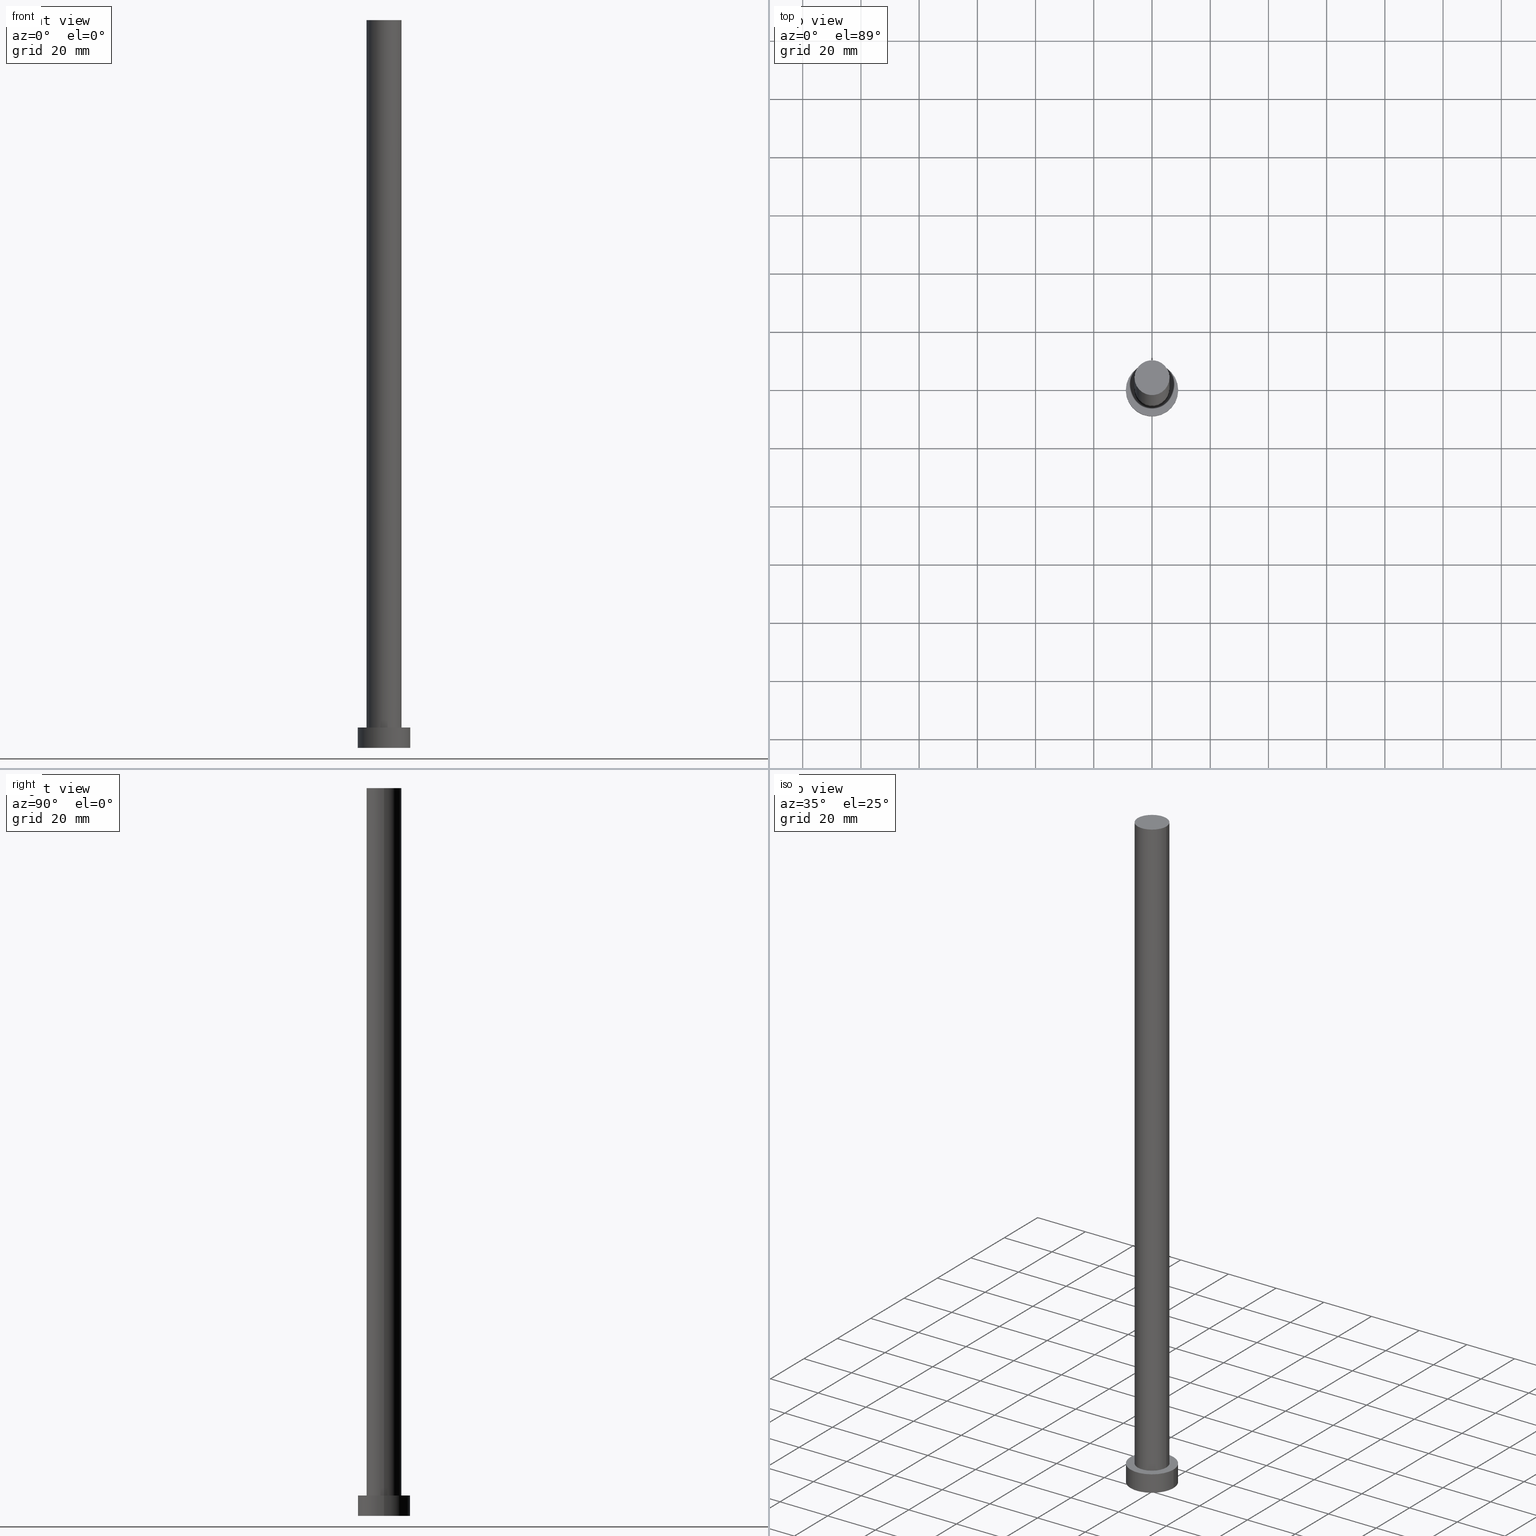
[diagram: canonical four-view strip — front | top / right | iso, engineering-drawing reading convention]
A machine part, canonical four-view strip (front | top / right | iso — engineering-drawing reading convention). The complete STEP part file that produces these views, byte-faithful:
ISO-10303-21;
HEADER;
FILE_DESCRIPTION (( 'STEP AP203' ),
    '1' );
FILE_NAME ('e915.STEP',
    '2023-02-13T09:18:08',
    ( '' ),
    ( '' ),
    'SwSTEP 2.0',
    'SolidWorks 2019',
    '' );
FILE_SCHEMA (( 'CONFIG_CONTROL_DESIGN' ));
ENDSEC;

DATA;
#1 = PRODUCT_DEFINITION_SHAPE ( 'NONE', 'NONE',  #213 ) ;
#2 = VECTOR ( 'NONE', #47, 1000.000000000000000 ) ;
#3 = VERTEX_POINT ( 'NONE', #108 ) ;
#4 = APPROVAL ( #149, 'NEUR�EN�' ) ;
#5 = CC_DESIGN_APPROVAL ( #60, ( #45 ) ) ;
#6 = MECHANICAL_CONTEXT ( 'NONE', #125, 'mechanical' ) ;
#7 = CARTESIAN_POINT ( 'NONE',  ( 0.000000000000000000, 0.000000000000000000, 250.0000000000000000 ) ) ;
#8 = CC_DESIGN_PERSON_AND_ORGANIZATION_ASSIGNMENT ( #206, #30, ( #176 ) ) ;
#9 = DIRECTION ( 'NONE',  ( 0.000000000000000000, 0.000000000000000000, 1.000000000000000000 ) ) ;
#10 = DIRECTION ( 'NONE',  ( -0.000000000000000000, -0.000000000000000000, -1.000000000000000000 ) ) ;
#11 = DIRECTION ( 'NONE',  ( 0.000000000000000000, 0.000000000000000000, 1.000000000000000000 ) ) ;
#12 = CARTESIAN_POINT ( 'NONE',  ( 0.000000000000000000, 0.000000000000000000, 250.0000000000000000 ) ) ;
#13 = PRODUCT_DEFINITION_FORMATION_WITH_SPECIFIED_SOURCE ( 'LIBOVOLN�', '', #176, .NOT_KNOWN. ) ;
#14 = CIRCLE ( 'NONE', #225, 6.000000000000000888 ) ;
#15 = EDGE_CURVE ( 'NONE', #217, #152, #76, .T. ) ;
#16 = ORIENTED_EDGE ( 'NONE', *, *, #46, .T. ) ;
#17 = CC_DESIGN_APPROVAL ( #32, ( #13 ) ) ;
#18 = VERTEX_POINT ( 'NONE', #80 ) ;
#19 = DIRECTION ( 'NONE',  ( 0.000000000000000000, 0.000000000000000000, 1.000000000000000000 ) ) ;
#20 = CARTESIAN_POINT ( 'NONE',  ( 9.000000000000000000, 1.102182119232617714E-15, 0.000000000000000000 ) ) ;
#21 = FACE_OUTER_BOUND ( 'NONE', #171, .T. ) ;
#22 = CYLINDRICAL_SURFACE ( 'NONE', #156, 6.000000000000000888 ) ;
#23 = CIRCLE ( 'NONE', #184, 9.000000000000000000 ) ;
#24 = CC_DESIGN_SECURITY_CLASSIFICATION ( #45, ( #13 ) ) ;
#25 = CARTESIAN_POINT ( 'NONE',  ( 0.000000000000000000, 0.000000000000000000, 7.000000000000000000 ) ) ;
#26 = APPLICATION_CONTEXT ( 'configuration controlled 3d designs of mechanical parts and assemblies' ) ;
#27 = AXIS2_PLACEMENT_3D ( 'NONE', #107, #73, #41 ) ;
#28 = CARTESIAN_POINT ( 'NONE',  ( 0.000000000000000000, 0.000000000000000000, 7.000000000000000000 ) ) ;
#29 = SECURITY_CLASSIFICATION_LEVEL ( 'unclassified' ) ;
#30 = PERSON_AND_ORGANIZATION_ROLE ( 'design_owner' ) ;
#31 = COORDINATED_UNIVERSAL_TIME_OFFSET ( 1, 0, .AHEAD. ) ;
#32 = APPROVAL ( #132, 'NEUR�EN�' ) ;
#33 = DIRECTION ( 'NONE',  ( -1.000000000000000000, 0.000000000000000000, 0.000000000000000000 ) ) ;
#34 = ORIENTED_EDGE ( 'NONE', *, *, #75, .F. ) ;
#35 = DATE_AND_TIME ( #115, #134 ) ;
#36 = DIRECTION ( 'NONE',  ( 1.000000000000000000, 0.000000000000000000, 0.000000000000000000 ) ) ;
#37 = ORIENTED_EDGE ( 'NONE', *, *, #247, .F. ) ;
#38 = CARTESIAN_POINT ( 'NONE',  ( 0.000000000000000000, 0.000000000000000000, 7.000000000000000000 ) ) ;
#39 = ORIENTED_EDGE ( 'NONE', *, *, #138, .F. ) ;
#40 = APPROVAL_DATE_TIME ( #169, #4 ) ;
#41 = DIRECTION ( 'NONE',  ( 1.000000000000000000, 0.000000000000000000, -0.000000000000000000 ) ) ;
#42 = EDGE_LOOP ( 'NONE', ( #175, #54, #238, #105 ) ) ;
#43 = CYLINDRICAL_SURFACE ( 'NONE', #180, 9.000000000000000000 ) ;
#44 = CC_DESIGN_PERSON_AND_ORGANIZATION_ASSIGNMENT ( #48, #166, ( #13 ) ) ;
#45 = SECURITY_CLASSIFICATION ( '', '', #29 ) ;
#46 = EDGE_CURVE ( 'NONE', #3, #194, #182, .T. ) ;
#47 = DIRECTION ( 'NONE',  ( -0.000000000000000000, -0.000000000000000000, -1.000000000000000000 ) ) ;
#48 = PERSON_AND_ORGANIZATION ( #246, #116 ) ;
#49 = DATE_AND_TIME ( #58, #109 ) ;
#50 = CC_DESIGN_DATE_AND_TIME_ASSIGNMENT ( #52, #104, ( #213 ) ) ;
#51 = EDGE_LOOP ( 'NONE', ( #69, #37, #219, #83 ) ) ;
#52 = DATE_AND_TIME ( #84, #214 ) ;
#53 = AXIS2_PLACEMENT_3D ( 'NONE', #38, #119, #216 ) ;
#54 = ORIENTED_EDGE ( 'NONE', *, *, #232, .T. ) ;
#55 = PLANE ( 'NONE',  #201 ) ;
#56 = CARTESIAN_POINT ( 'NONE',  ( 0.000000000000000000, 0.000000000000000000, 7.000000000000000000 ) ) ;
#57 = ADVANCED_FACE ( 'NONE', ( #170 ), #67, .T. ) ;
#58 = CALENDAR_DATE ( 2023, 13, 2 ) ;
#59 = CC_DESIGN_APPROVAL ( #4, ( #213 ) ) ;
#60 = APPROVAL ( #99, 'NEUR�EN�' ) ;
#61 = PERSON_AND_ORGANIZATION ( #246, #116 ) ;
#62 = DIRECTION ( 'NONE',  ( 1.000000000000000000, 0.000000000000000000, 0.000000000000000000 ) ) ;
#63 = EDGE_CURVE ( 'NONE', #152, #217, #90, .T. ) ;
#64 = DIRECTION ( 'NONE',  ( 1.000000000000000000, 0.000000000000000000, 0.000000000000000000 ) ) ;
#65 = DATE_AND_TIME ( #117, #234 ) ;
#66 = AXIS2_PLACEMENT_3D ( 'NONE', #118, #255, #82 ) ;
#67 = CYLINDRICAL_SURFACE ( 'NONE', #218, 9.000000000000000000 ) ;
#68 = EDGE_LOOP ( 'NONE', ( #231, #173, #122, #193 ) ) ;
#69 = ORIENTED_EDGE ( 'NONE', *, *, #223, .F. ) ;
#70 = ORIENTED_EDGE ( 'NONE', *, *, #232, .F. ) ;
#71 = COORDINATED_UNIVERSAL_TIME_OFFSET ( 1, 0, .AHEAD. ) ;
#72 = ORIENTED_EDGE ( 'NONE', *, *, #138, .T. ) ;
#73 = DIRECTION ( 'NONE',  ( 0.000000000000000000, 0.000000000000000000, 1.000000000000000000 ) ) ;
#74 = FACE_BOUND ( 'NONE', #147, .T. ) ;
#75 = EDGE_CURVE ( 'NONE', #191, #126, #128, .T. ) ;
#76 = CIRCLE ( 'NONE', #146, 9.000000000000000000 ) ;
#77 = PERSON_AND_ORGANIZATION_ROLE ( 'classification_officer' ) ;
#78 = DIRECTION ( 'NONE',  ( 0.000000000000000000, 0.000000000000000000, 1.000000000000000000 ) ) ;
#79 = CALENDAR_DATE ( 2023, 13, 2 ) ;
#80 = CARTESIAN_POINT ( 'NONE',  ( -9.000000000000000000, 0.000000000000000000, 7.000000000000000000 ) ) ;
#81 = COORDINATED_UNIVERSAL_TIME_OFFSET ( 1, 0, .AHEAD. ) ;
#82 = DIRECTION ( 'NONE',  ( 1.000000000000000000, 0.000000000000000000, 0.000000000000000000 ) ) ;
#83 = ORIENTED_EDGE ( 'NONE', *, *, #15, .T. ) ;
#84 = CALENDAR_DATE ( 2023, 13, 2 ) ;
#85 = APPROVAL_ROLE ( '' ) ;
#86 = AXIS2_PLACEMENT_3D ( 'NONE', #12, #10, #161 ) ;
#87 = CC_DESIGN_DATE_AND_TIME_ASSIGNMENT ( #65, #145, ( #45 ) ) ;
#88 = CARTESIAN_POINT ( 'NONE',  ( 0.000000000000000000, 0.000000000000000000, 250.0000000000000000 ) ) ;
#89 = CARTESIAN_POINT ( 'NONE',  ( -9.000000000000000000, 0.000000000000000000, 0.000000000000000000 ) ) ;
#90 = CIRCLE ( 'NONE', #253, 9.000000000000000000 ) ;
#91 = LINE ( 'NONE', #249, #250 ) ;
#92 = DIRECTION ( 'NONE',  ( 0.000000000000000000, 0.000000000000000000, 1.000000000000000000 ) ) ;
#93 = PERSON_AND_ORGANIZATION ( #246, #116 ) ;
#94 = DIRECTION ( 'NONE',  ( 0.000000000000000000, 0.000000000000000000, 1.000000000000000000 ) ) ;
#95 = ADVANCED_FACE ( 'NONE', ( #137 ), #243, .T. ) ;
#96 = PERSON_AND_ORGANIZATION ( #246, #116 ) ;
#97 = VECTOR ( 'NONE', #235, 1000.000000000000000 ) ;
#98 = ORIENTED_EDGE ( 'NONE', *, *, #247, .T. ) ;
#99 = APPROVAL_STATUS ( 'not_yet_approved' ) ;
#100 = CARTESIAN_POINT ( 'NONE',  ( 0.000000000000000000, 0.000000000000000000, 7.000000000000000000 ) ) ;
#101 = COORDINATED_UNIVERSAL_TIME_OFFSET ( 1, 0, .AHEAD. ) ;
#102 = ADVANCED_FACE ( 'NONE', ( #21 ), #55, .F. ) ;
#103 = EDGE_LOOP ( 'NONE', ( #72, #16 ) ) ;
#104 = DATE_TIME_ROLE ( 'creation_date' ) ;
#105 = ORIENTED_EDGE ( 'NONE', *, *, #160, .F. ) ;
#106 = AXIS2_PLACEMENT_3D ( 'NONE', #172, #215, #129 ) ;
#107 = CARTESIAN_POINT ( 'NONE',  ( 0.000000000000000000, 0.000000000000000000, 250.0000000000000000 ) ) ;
#108 = CARTESIAN_POINT ( 'NONE',  ( 6.000000000000000888, 7.347880794884120722E-16, 250.0000000000000000 ) ) ;
#109 = LOCAL_TIME ( 10, 18, 8.000000000000000000, #71 ) ;
#110 = CARTESIAN_POINT ( 'NONE',  ( -6.000000000000000888, 0.000000000000000000, 250.0000000000000000 ) ) ;
#111 = CARTESIAN_POINT ( 'NONE',  ( 6.000000000000000888, 7.347880794884120722E-16, 7.000000000000000000 ) ) ;
#112 = COORDINATED_UNIVERSAL_TIME_OFFSET ( 1, 0, .AHEAD. ) ;
#113 = DIRECTION ( 'NONE',  ( 1.000000000000000000, 0.000000000000000000, -0.000000000000000000 ) ) ;
#114 = APPROVAL_DATE_TIME ( #49, #32 ) ;
#115 = CALENDAR_DATE ( 2023, 13, 2 ) ;
#116 = ORGANIZATION ( 'NEUR�EN�', 'NEUR�EN�', '' ) ;
#117 = CALENDAR_DATE ( 2023, 13, 2 ) ;
#118 = CARTESIAN_POINT ( 'NONE',  ( 0.000000000000000000, 0.000000000000000000, 250.0000000000000000 ) ) ;
#119 = DIRECTION ( 'NONE',  ( 0.000000000000000000, 0.000000000000000000, 1.000000000000000000 ) ) ;
#120 = ORIENTED_EDGE ( 'NONE', *, *, #209, .T. ) ;
#121 = CIRCLE ( 'NONE', #164, 6.000000000000000888 ) ;
#122 = ORIENTED_EDGE ( 'NONE', *, *, #63, .T. ) ;
#123 = PERSON_AND_ORGANIZATION ( #246, #116 ) ;
#124 = DIRECTION ( 'NONE',  ( -0.000000000000000000, -0.000000000000000000, -1.000000000000000000 ) ) ;
#125 = APPLICATION_CONTEXT ( 'configuration controlled 3d designs of mechanical parts and assemblies' ) ;
#126 = VERTEX_POINT ( 'NONE', #224 ) ;
#127 = PERSON_AND_ORGANIZATION ( #246, #116 ) ;
#128 = CIRCLE ( 'NONE', #53, 6.000000000000000888 ) ;
#129 = DIRECTION ( 'NONE',  ( 1.000000000000000000, 0.000000000000000000, 0.000000000000000000 ) ) ;
#130 = CARTESIAN_POINT ( 'NONE',  ( -9.000000000000000000, 0.000000000000000000, 7.000000000000000000 ) ) ;
#131 = ORIENTED_EDGE ( 'NONE', *, *, #63, .F. ) ;
#132 = APPROVAL_STATUS ( 'not_yet_approved' ) ;
#133 = DIRECTION ( 'NONE',  ( -0.000000000000000000, -0.000000000000000000, -1.000000000000000000 ) ) ;
#134 = LOCAL_TIME ( 10, 18, 8.000000000000000000, #31 ) ;
#135 = DIRECTION ( 'NONE',  ( -0.000000000000000000, -0.000000000000000000, -1.000000000000000000 ) ) ;
#136 = ADVANCED_FACE ( 'NONE', ( #241 ), #22, .T. ) ;
#137 = FACE_OUTER_BOUND ( 'NONE', #103, .T. ) ;
#138 = EDGE_CURVE ( 'NONE', #194, #3, #14, .T. ) ;
#139 = CARTESIAN_POINT ( 'NONE',  ( 0.000000000000000000, 0.000000000000000000, 0.000000000000000000 ) ) ;
#140 = APPLICATION_PROTOCOL_DEFINITION ( 'international standard', 'config_control_design', 1994, #26 ) ;
#141 = CARTESIAN_POINT ( 'NONE',  ( 9.000000000000000000, 1.102182119232617714E-15, 7.000000000000000000 ) ) ;
#142 = SHAPE_DEFINITION_REPRESENTATION ( #1, #244 ) ;
#143 = CC_DESIGN_PERSON_AND_ORGANIZATION_ASSIGNMENT ( #123, #240, ( #213 ) ) ;
#144 = APPROVAL_ROLE ( '' ) ;
#145 = DATE_TIME_ROLE ( 'classification_date' ) ;
#146 = AXIS2_PLACEMENT_3D ( 'NONE', #139, #229, #36 ) ;
#147 = EDGE_LOOP ( 'NONE', ( #154, #34 ) ) ;
#148 = MANIFOLD_SOLID_BREP ( 'P�idat vysunut�m3', #158 ) ;
#149 = APPROVAL_STATUS ( 'not_yet_approved' ) ;
#150 = DIRECTION ( 'NONE',  ( 1.000000000000000000, 0.000000000000000000, 0.000000000000000000 ) ) ;
#151 = APPROVAL_PERSON_ORGANIZATION ( #127, #32, #85 ) ;
#152 = VERTEX_POINT ( 'NONE', #20 ) ;
#153 = EDGE_CURVE ( 'NONE', #18, #217, #208, .T. ) ;
#154 = ORIENTED_EDGE ( 'NONE', *, *, #237, .F. ) ;
#155 = DESIGN_CONTEXT ( 'detailed design', #26, 'design' ) ;
#156 = AXIS2_PLACEMENT_3D ( 'NONE', #7, #198, #239 ) ;
#157 = ADVANCED_FACE ( 'NONE', ( #196 ), #43, .T. ) ;
#158 = CLOSED_SHELL ( 'NONE', ( #136, #57, #157, #188, #102, #186, #95 ) ) ;
#159 = DIRECTION ( 'NONE',  ( 1.000000000000000000, 0.000000000000000000, 0.000000000000000000 ) ) ;
#160 = EDGE_CURVE ( 'NONE', #194, #126, #178, .T. ) ;
#161 = DIRECTION ( 'NONE',  ( -1.000000000000000000, 0.000000000000000000, 0.000000000000000000 ) ) ;
#162 = CARTESIAN_POINT ( 'NONE',  ( 0.000000000000000000, 0.000000000000000000, 0.000000000000000000 ) ) ;
#163 = PLANE ( 'NONE',  #251 ) ;
#164 = AXIS2_PLACEMENT_3D ( 'NONE', #28, #11, #204 ) ;
#165 = PRODUCT_RELATED_PRODUCT_CATEGORY ( 'detail', '', ( #176 ) ) ;
#166 = PERSON_AND_ORGANIZATION_ROLE ( 'design_supplier' ) ;
#167 =( NAMED_UNIT ( * ) PLANE_ANGLE_UNIT ( ) SI_UNIT ( $, .RADIAN. ) );
#168 = CC_DESIGN_PERSON_AND_ORGANIZATION_ASSIGNMENT ( #96, #205, ( #13 ) ) ;
#169 = DATE_AND_TIME ( #79, #203 ) ;
#170 = FACE_OUTER_BOUND ( 'NONE', #68, .T. ) ;
#171 = EDGE_LOOP ( 'NONE', ( #236, #131 ) ) ;
#172 = CARTESIAN_POINT ( 'NONE',  ( 0.000000000000000000, 0.000000000000000000, 0.000000000000000000 ) ) ;
#173 = ORIENTED_EDGE ( 'NONE', *, *, #223, .T. ) ;
#174 = APPLICATION_PROTOCOL_DEFINITION ( 'international standard', 'config_control_design', 1994, #125 ) ;
#175 = ORIENTED_EDGE ( 'NONE', *, *, #46, .F. ) ;
#176 = PRODUCT ( 'e915', 'e915', '', ( #6 ) ) ;
#177 = APPROVAL_DATE_TIME ( #35, #60 ) ;
#178 = LINE ( 'NONE', #222, #230 ) ;
#179 = DIRECTION ( 'NONE',  ( -1.000000000000000000, 0.000000000000000000, 0.000000000000000000 ) ) ;
#180 = AXIS2_PLACEMENT_3D ( 'NONE', #56, #135, #179 ) ;
#181 = FACE_OUTER_BOUND ( 'NONE', #197, .T. ) ;
#182 = CIRCLE ( 'NONE', #66, 6.000000000000000888 ) ;
#183 = FACE_OUTER_BOUND ( 'NONE', #190, .T. ) ;
#184 = AXIS2_PLACEMENT_3D ( 'NONE', #200, #92, #62 ) ;
#185 = LINE ( 'NONE', #226, #2 ) ;
#186 = ADVANCED_FACE ( 'NONE', ( #181 ), #252, .T. ) ;
#187 = CARTESIAN_POINT ( 'NONE',  ( 0.000000000000000000, 0.000000000000000000, 7.000000000000000000 ) ) ;
#188 = ADVANCED_FACE ( 'NONE', ( #74, #183 ), #163, .T. ) ;
#189 = APPROVAL_ROLE ( '' ) ;
#190 = EDGE_LOOP ( 'NONE', ( #98, #120 ) ) ;
#191 = VERTEX_POINT ( 'NONE', #111 ) ;
#192 = CARTESIAN_POINT ( 'NONE',  ( 0.000000000000000000, 0.000000000000000000, 0.000000000000000000 ) ) ;
#193 = ORIENTED_EDGE ( 'NONE', *, *, #153, .F. ) ;
#194 = VERTEX_POINT ( 'NONE', #110 ) ;
#195 = UNCERTAINTY_MEASURE_WITH_UNIT (LENGTH_MEASURE( 1.000000000000000082E-05 ), #207, 'distance_accuracy_value', 'NONE');
#196 = FACE_OUTER_BOUND ( 'NONE', #51, .T. ) ;
#197 = EDGE_LOOP ( 'NONE', ( #70, #39, #221, #212 ) ) ;
#198 = DIRECTION ( 'NONE',  ( -0.000000000000000000, -0.000000000000000000, -1.000000000000000000 ) ) ;
#199 = CIRCLE ( 'NONE', #233, 9.000000000000000000 ) ;
#200 = CARTESIAN_POINT ( 'NONE',  ( 0.000000000000000000, 0.000000000000000000, 7.000000000000000000 ) ) ;
#201 = AXIS2_PLACEMENT_3D ( 'NONE', #162, #94, #113 ) ;
#202 = DIRECTION ( 'NONE',  ( -0.000000000000000000, -0.000000000000000000, -1.000000000000000000 ) ) ;
#203 = LOCAL_TIME ( 10, 18, 8.000000000000000000, #81 ) ;
#204 = DIRECTION ( 'NONE',  ( 1.000000000000000000, 0.000000000000000000, 0.000000000000000000 ) ) ;
#205 = PERSON_AND_ORGANIZATION_ROLE ( 'creator' ) ;
#206 = PERSON_AND_ORGANIZATION ( #246, #116 ) ;
#207 =( LENGTH_UNIT ( ) NAMED_UNIT ( * ) SI_UNIT ( .MILLI., .METRE. ) );
#208 = LINE ( 'NONE', #130, #97 ) ;
#209 = EDGE_CURVE ( 'NONE', #211, #18, #23, .T. ) ;
#210 =( NAMED_UNIT ( * ) SI_UNIT ( $, .STERADIAN. ) SOLID_ANGLE_UNIT ( ) );
#211 = VERTEX_POINT ( 'NONE', #141 ) ;
#212 = ORIENTED_EDGE ( 'NONE', *, *, #237, .T. ) ;
#213 = PRODUCT_DEFINITION ( 'NEZN�M�', '', #13, #155 ) ;
#214 = LOCAL_TIME ( 10, 18, 8.000000000000000000, #101 ) ;
#215 = DIRECTION ( 'NONE',  ( 0.000000000000000000, 0.000000000000000000, 1.000000000000000000 ) ) ;
#216 = DIRECTION ( 'NONE',  ( 1.000000000000000000, 0.000000000000000000, 0.000000000000000000 ) ) ;
#217 = VERTEX_POINT ( 'NONE', #89 ) ;
#218 = AXIS2_PLACEMENT_3D ( 'NONE', #100, #124, #33 ) ;
#219 = ORIENTED_EDGE ( 'NONE', *, *, #153, .T. ) ;
#220 = APPROVAL_PERSON_ORGANIZATION ( #61, #60, #144 ) ;
#221 = ORIENTED_EDGE ( 'NONE', *, *, #160, .T. ) ;
#222 = CARTESIAN_POINT ( 'NONE',  ( -6.000000000000000888, 0.000000000000000000, 250.0000000000000000 ) ) ;
#223 = EDGE_CURVE ( 'NONE', #211, #152, #185, .T. ) ;
#224 = CARTESIAN_POINT ( 'NONE',  ( -6.000000000000000888, 0.000000000000000000, 7.000000000000000000 ) ) ;
#225 = AXIS2_PLACEMENT_3D ( 'NONE', #88, #9, #159 ) ;
#226 = CARTESIAN_POINT ( 'NONE',  ( 9.000000000000000000, 1.102182119232617714E-15, 7.000000000000000000 ) ) ;
#227 = CC_DESIGN_PERSON_AND_ORGANIZATION_ASSIGNMENT ( #93, #77, ( #45 ) ) ;
#228 = DIRECTION ( 'NONE',  ( 0.000000000000000000, 0.000000000000000000, 1.000000000000000000 ) ) ;
#229 = DIRECTION ( 'NONE',  ( 0.000000000000000000, 0.000000000000000000, 1.000000000000000000 ) ) ;
#230 = VECTOR ( 'NONE', #133, 1000.000000000000000 ) ;
#231 = ORIENTED_EDGE ( 'NONE', *, *, #209, .F. ) ;
#232 = EDGE_CURVE ( 'NONE', #3, #191, #91, .T. ) ;
#233 = AXIS2_PLACEMENT_3D ( 'NONE', #187, #78, #64 ) ;
#234 = LOCAL_TIME ( 10, 18, 8.000000000000000000, #112 ) ;
#235 = DIRECTION ( 'NONE',  ( -0.000000000000000000, -0.000000000000000000, -1.000000000000000000 ) ) ;
#236 = ORIENTED_EDGE ( 'NONE', *, *, #15, .F. ) ;
#237 = EDGE_CURVE ( 'NONE', #126, #191, #121, .T. ) ;
#238 = ORIENTED_EDGE ( 'NONE', *, *, #75, .T. ) ;
#239 = DIRECTION ( 'NONE',  ( -1.000000000000000000, 0.000000000000000000, 0.000000000000000000 ) ) ;
#240 = PERSON_AND_ORGANIZATION_ROLE ( 'creator' ) ;
#241 = FACE_OUTER_BOUND ( 'NONE', #42, .T. ) ;
#242 =( GEOMETRIC_REPRESENTATION_CONTEXT ( 3 ) GLOBAL_UNCERTAINTY_ASSIGNED_CONTEXT ( ( #195 ) ) GLOBAL_UNIT_ASSIGNED_CONTEXT ( ( #207, #167, #210 ) ) REPRESENTATION_CONTEXT ( 'NONE', 'WORKASPACE' ) );
#243 = PLANE ( 'NONE',  #27 ) ;
#244 = ADVANCED_BREP_SHAPE_REPRESENTATION ( 'e915', ( #148, #106 ), #242 ) ;
#245 = PERSON_AND_ORGANIZATION ( #246, #116 ) ;
#246 = PERSON ( 'NEUR�EN�', 'NEUR�EN�', 'NEUR�EN�', ('NEUR�EN�'), ('NEUR�EN�'), ('NEUR�EN�') ) ;
#247 = EDGE_CURVE ( 'NONE', #18, #211, #199, .T. ) ;
#248 = DIRECTION ( 'NONE',  ( 1.000000000000000000, 0.000000000000000000, -0.000000000000000000 ) ) ;
#249 = CARTESIAN_POINT ( 'NONE',  ( 6.000000000000000888, 7.347880794884120722E-16, 250.0000000000000000 ) ) ;
#250 = VECTOR ( 'NONE', #202, 1000.000000000000000 ) ;
#251 = AXIS2_PLACEMENT_3D ( 'NONE', #25, #228, #248 ) ;
#252 = CYLINDRICAL_SURFACE ( 'NONE', #86, 6.000000000000000888 ) ;
#253 = AXIS2_PLACEMENT_3D ( 'NONE', #192, #19, #150 ) ;
#254 = APPROVAL_PERSON_ORGANIZATION ( #245, #4, #189 ) ;
#255 = DIRECTION ( 'NONE',  ( 0.000000000000000000, 0.000000000000000000, 1.000000000000000000 ) ) ;
ENDSEC;
END-ISO-10303-21;
